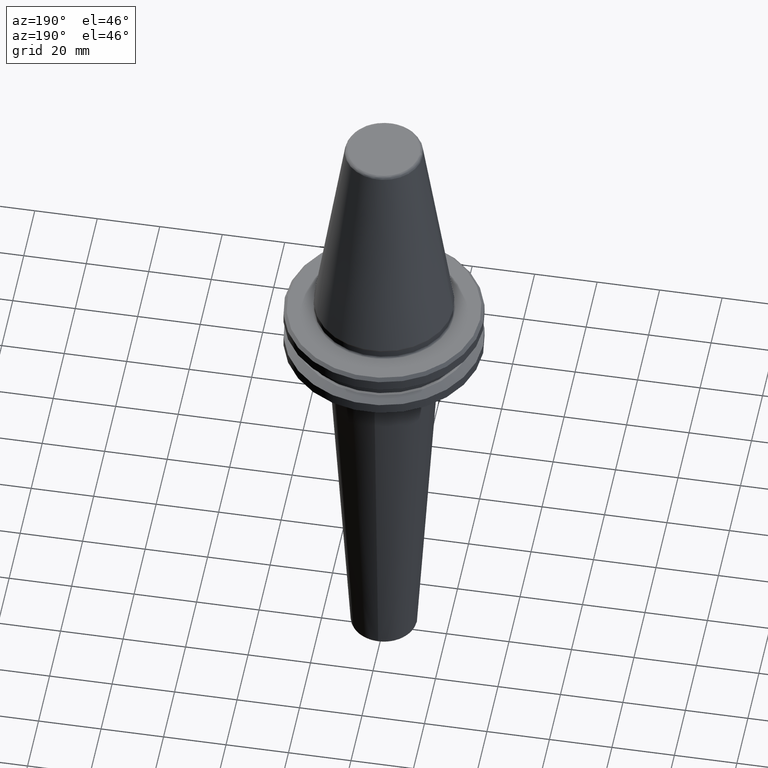
[diagram: clean part render]
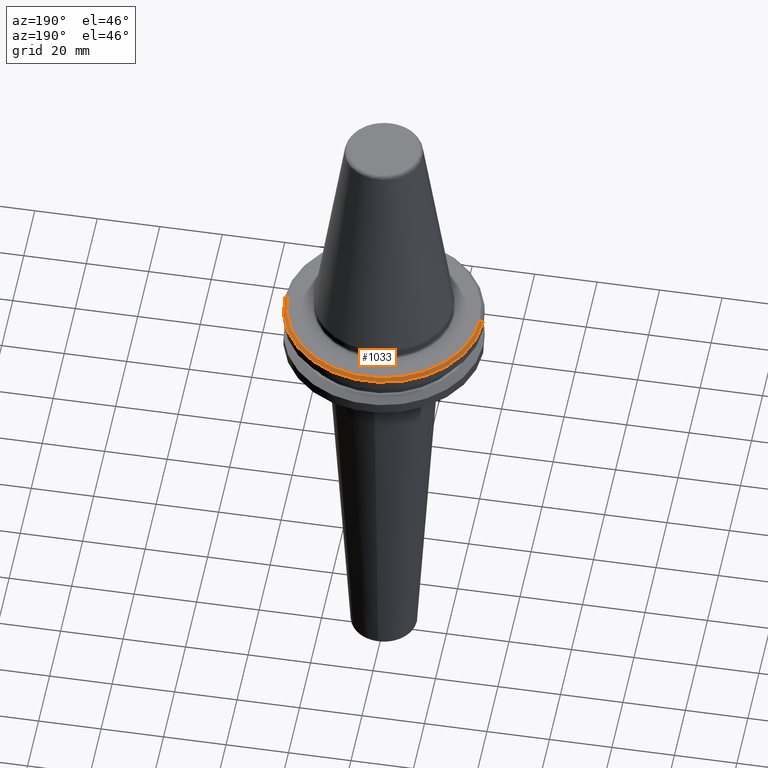
[diagram: same view with one face highlighted and labeled with its STEP entity id]
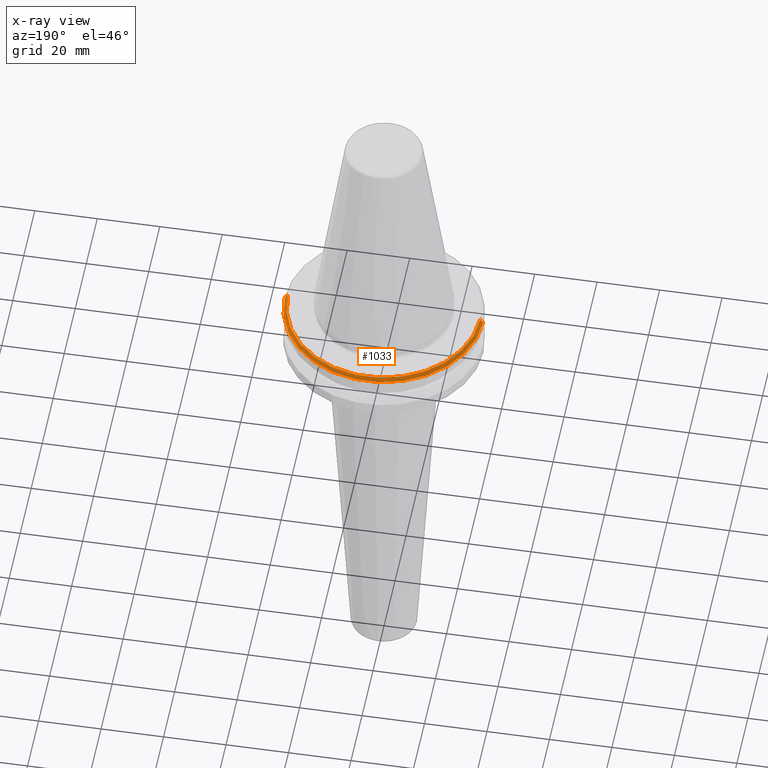
[diagram: x-ray of the same camera — body ghosted, the highlighted face saturated]
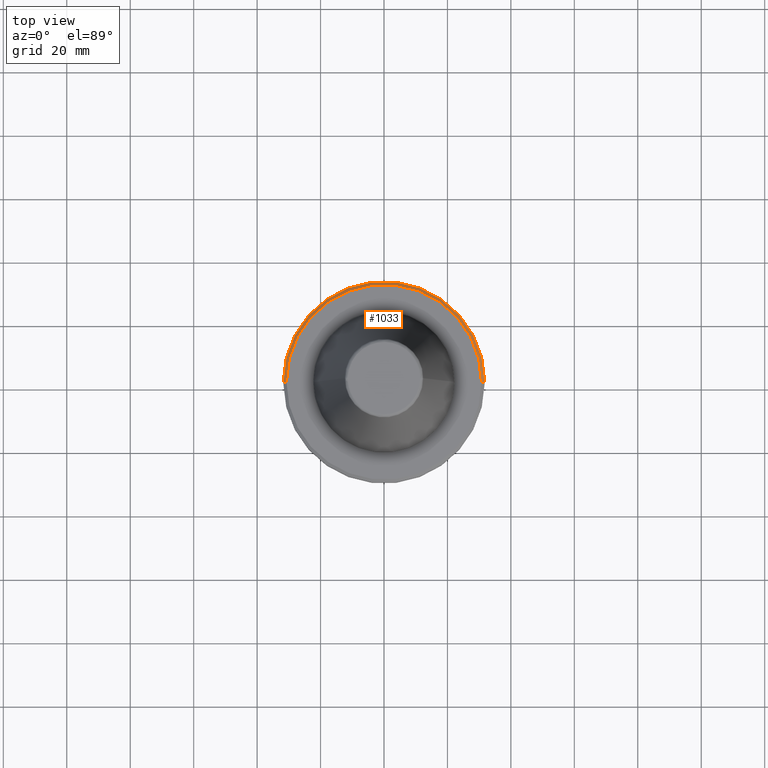
[diagram: same view with one face highlighted and labeled with its STEP entity id]
A machine part, auxiliary view. The second image highlights one B-rep face of the part: STEP entity #1033.
The next image is the same camera in x-ray: the body ghosted, the highlighted face saturated — about 0% of this face is hidden behind the body in this view.
A second angle (top view) of the same face is appended — the face is thin or edge-on in the first view.
In plain terms, the highlighted conical surface has half-angle 45 deg.
Its self-contained STEP definition (entity closure, byte-faithful):
#29 = CARTESIAN_POINT ( 'NONE',  ( 31.63284271247462300, 3.873905957576372200E-015, -4.082842712474625400 ) ) ;
#44 = EDGE_LOOP ( 'NONE', ( #192, #1162, #271, #104 ) ) ;
#56 = DIRECTION ( 'NONE',  ( -0.7071067811865438000, 0.0000000000000000000, -0.7071067811865513500 ) ) ;
#72 = CARTESIAN_POINT ( 'NONE',  ( -31.63284271247462300, 0.0000000000000000000, -4.082842712474625400 ) ) ;
#82 = LINE ( 'NONE', #72, #993 ) ;
#104 = ORIENTED_EDGE ( 'NONE', *, *, #605, .F. ) ;
#116 = CARTESIAN_POINT ( 'NONE',  ( -31.74999999999994300, 3.888253587292843300E-015, -4.200000000000036600 ) ) ;
#124 = DIRECTION ( 'NONE',  ( -0.0000000000000000000, -0.0000000000000000000, 1.000000000000000000 ) ) ;
#152 = DIRECTION ( 'NONE',  ( -0.0000000000000000000, -0.0000000000000000000, 1.000000000000000000 ) ) ;
#167 = LINE ( 'NONE', #29, #1088 ) ;
#192 = ORIENTED_EDGE ( 'NONE', *, *, #242, .F. ) ;
#242 = EDGE_CURVE ( 'NONE', #1276, #1335, #977, .T. ) ;
#263 = CARTESIAN_POINT ( 'NONE',  ( -30.74999999999994300, 0.0000000000000000000, -3.200000000000036100 ) ) ;
#271 = ORIENTED_EDGE ( 'NONE', *, *, #933, .T. ) ;
#400 = DIRECTION ( 'NONE',  ( 0.7071067811865438000, 8.659560562354888500E-017, -0.7071067811865513500 ) ) ;
#411 = CARTESIAN_POINT ( 'NONE',  ( 0.0000000000000000000, 0.0000000000000000000, -4.082842712474625400 ) ) ;
#419 = FACE_OUTER_BOUND ( 'NONE', #44, .T. ) ;
#442 = VERTEX_POINT ( 'NONE', #116 ) ;
#512 = CARTESIAN_POINT ( 'NONE',  ( 30.74999999999994300, 3.827021247335477300E-015, -3.200000000000036100 ) ) ;
#605 = EDGE_CURVE ( 'NONE', #1335, #442, #82, .T. ) ;
#664 = CARTESIAN_POINT ( 'NONE',  ( 31.74999999999994300, 0.0000000000000000000, -4.200000000000036600 ) ) ;
#704 = AXIS2_PLACEMENT_3D ( 'NONE', #729, #124, #1203 ) ;
#729 = CARTESIAN_POINT ( 'NONE',  ( 0.0000000000000000000, 0.0000000000000000000, -3.200000000000036100 ) ) ;
#811 = CIRCLE ( 'NONE', #961, 31.74999999999994300 ) ;
#867 = CARTESIAN_POINT ( 'NONE',  ( 0.0000000000000000000, 0.0000000000000000000, -4.200000000000036600 ) ) ;
#933 = EDGE_CURVE ( 'NONE', #1178, #442, #811, .T. ) ;
#961 = AXIS2_PLACEMENT_3D ( 'NONE', #867, #152, #989 ) ;
#977 = CIRCLE ( 'NONE', #704, 30.74999999999994300 ) ;
#985 = EDGE_CURVE ( 'NONE', #1276, #1178, #167, .T. ) ;
#989 = DIRECTION ( 'NONE',  ( 1.000000000000000000, 0.0000000000000000000, 0.0000000000000000000 ) ) ;
#993 = VECTOR ( 'NONE', #56, 1000.000000000000000 ) ;
#1033 = ADVANCED_FACE ( 'NONE', ( #419 ), #1315, .T. ) ;
#1088 = VECTOR ( 'NONE', #400, 1000.000000000000000 ) ;
#1162 = ORIENTED_EDGE ( 'NONE', *, *, #985, .T. ) ;
#1178 = VERTEX_POINT ( 'NONE', #664 ) ;
#1203 = DIRECTION ( 'NONE',  ( 1.000000000000000000, 0.0000000000000000000, 0.0000000000000000000 ) ) ;
#1276 = VERTEX_POINT ( 'NONE', #512 ) ;
#1315 = CONICAL_SURFACE ( 'NONE', #1460, 31.63284271247462300, 0.7853981633974429500 ) ;
#1335 = VERTEX_POINT ( 'NONE', #263 ) ;
#1460 = AXIS2_PLACEMENT_3D ( 'NONE', #411, #1490, #1526 ) ;
#1490 = DIRECTION ( 'NONE',  ( 0.0000000000000000000, 0.0000000000000000000, -1.000000000000000000 ) ) ;
#1526 = DIRECTION ( 'NONE',  ( -1.000000000000000000, 0.0000000000000000000, 0.0000000000000000000 ) ) ;